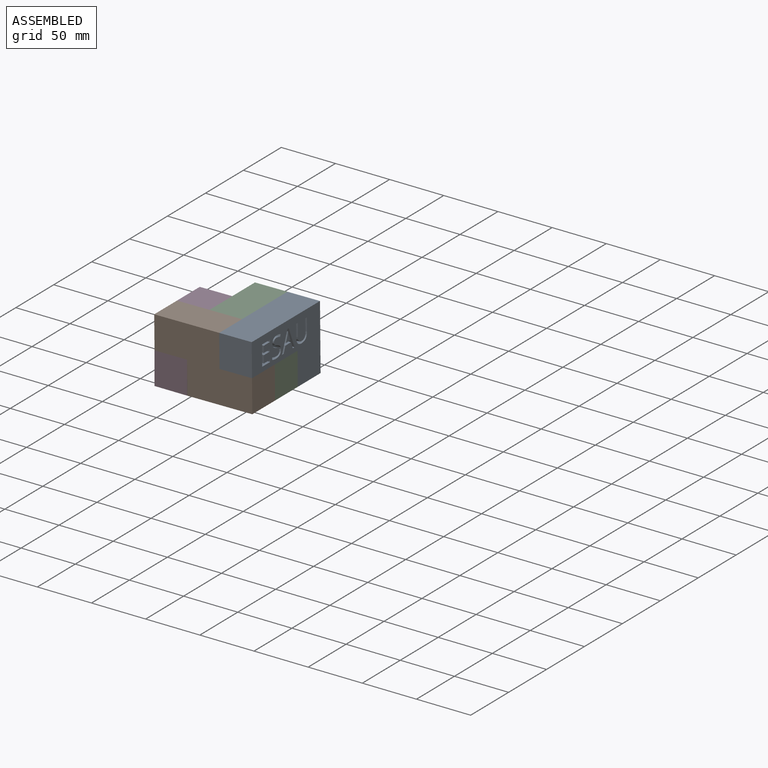
[diagram: assembled view]
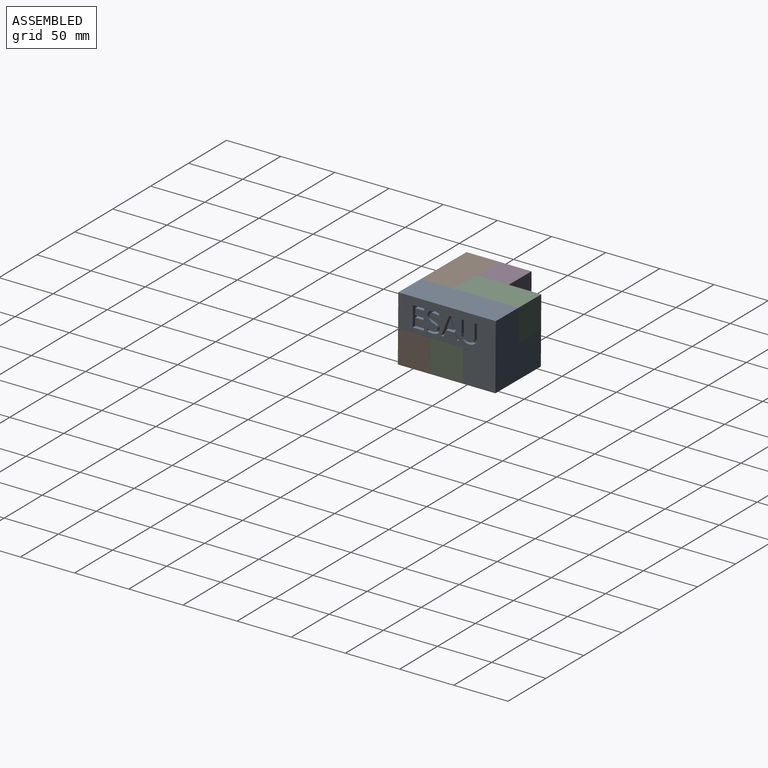
[diagram: assembled view, second angle]
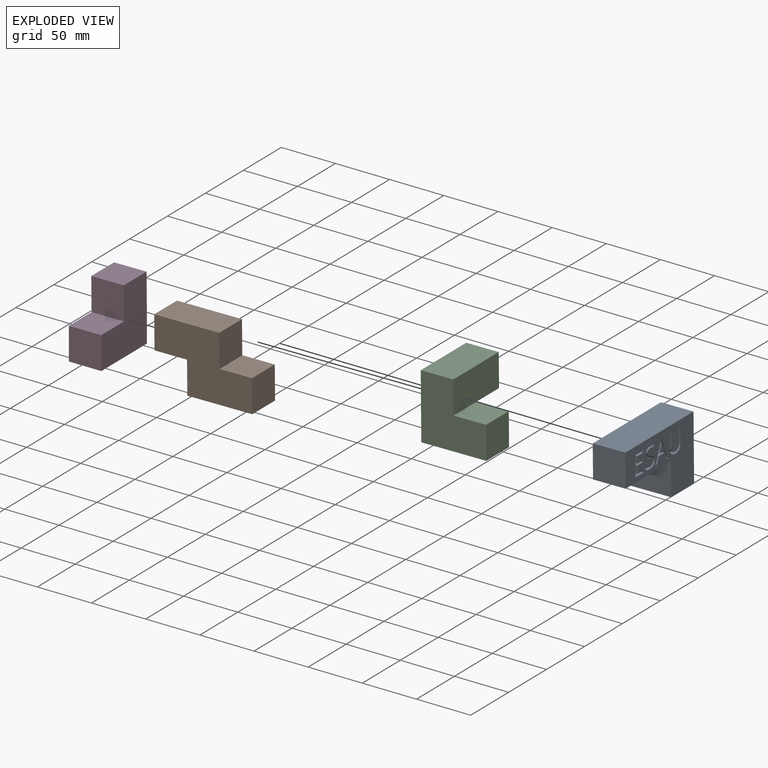
[diagram: exploded view]
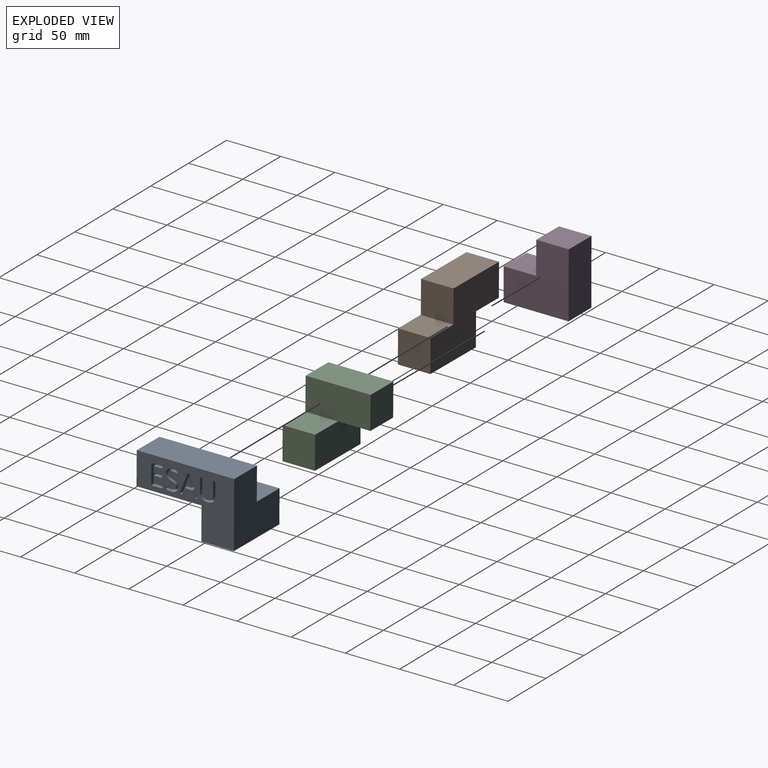
[diagram: exploded view, second angle]
ASSEMBLY  parts=4 mates=3
PART A: 79 faces, bbox 60x90x60 mm
  f0: plane 90x60mm, normal (-1,0,0), area 3231.9mm2, adj f1,f2,f4,f5,f6,f7,f10,f11
  f1: plane 60x30mm, normal (0,0,-1), area 1800mm2, adj f0,f3,f5,f6
  f2: plane 90x30mm, normal (0,0,1), area 2700mm2, adj f0,f3,f4,f5
  f3: plane 90x30mm, normal (1,0,0), area 2700mm2, adj f1,f2,f4,f5,f8
  f4: plane 60x60mm, normal (0,-1,0), area 2700mm2, adj f0,f2,f3,f7,f8,f9
  f5: plane 30x30mm, normal (0,1,0), area 900mm2, adj f0,f1,f2,f3
  f6: plane 60x30mm, normal (0,1,0), area 1800mm2, adj f0,f1,f7,f8,f9
  f7: plane 60x30mm, normal (0,0,-1), area 1800mm2, adj f0,f4,f6,f9
  f8: plane 30x30mm, normal (0,0,1), area 900mm2, adj f3,f4,f6,f9
  f9: plane 30x30mm, normal (1,0,0), area 900mm2, adj f4,f6,f7,f8
  f10: extruded ~5x3.82mm, area 21.9mm2, adj f0,f11,f34,f35
  f11: extruded ~5x3.09mm, area 16.8mm2, adj f0,f10,f12,f35
  f12: extruded ~5x4.01mm, area 23.1mm2, adj f0,f11,f13,f35
  f13: extruded ~5x2.58mm, area 14.1mm2, adj f0,f12,f14,f35
  f14: extruded ~5x1.2mm, area 8.3mm2, adj f0,f13,f15,f35
  f15: extruded ~5x1.58mm, area 8.2mm2, adj f0,f14,f16,f35
  f16: extruded ~5x2.04mm, area 11.7mm2, adj f0,f15,f17,f35
  f17: extruded ~5x2.67mm, area 14.1mm2, adj f0,f16,f18,f35
  f18: extruded ~5x4.46mm, area 23mm2, adj f0,f17,f19,f35
  f19: plane 5x1.87mm, normal (0,0.94,0.34), area 10mm2, adj f0,f18,f20,f35
  f20: extruded ~5.08x5mm, area 26.1mm2, adj f0,f19,f21,f35
  f21: extruded ~5x4.26mm, area 22.7mm2, adj f0,f20,f22,f35
  f22: extruded ~5x3.41mm, area 19.6mm2, adj f0,f21,f23,f35
  f23: extruded ~5x3.31mm, area 17.8mm2, adj f0,f22,f24,f35
  f24: extruded ~5x3.69mm, area 21.7mm2, adj f0,f23,f25,f35
  f25: extruded ~5x2.76mm, area 15mm2, adj f0,f24,f26,f35
  f26: extruded ~5x1.29mm, area 8.7mm2, adj f0,f25,f27,f35
  f27: extruded ~5x1.58mm, area 8.2mm2, adj f0,f26,f28,f35
  f28: extruded ~5x2.28mm, area 13.1mm2, adj f0,f27,f29,f35
  f29: extruded ~5x3.24mm, area 17mm2, adj f0,f28,f30,f35
  f30: extruded ~5x2.66mm, area 13.4mm2, adj f0,f29,f31,f35
  f31: extruded ~5x2.49mm, area 13mm2, adj f0,f30,f32,f35
  f32: plane 5x2.08mm, normal (0,-1,0), area 10.4mm2, adj f0,f31,f33,f35
  f33: extruded ~5.07x5mm, area 25.9mm2, adj f0,f32,f34,f35
  f34: extruded ~5x4.82mm, area 25.5mm2, adj f0,f10,f33,f35
  f35: plane 19.05x11.66mm, normal (-1,0,0), area 79.5mm2, adj f10,f11,f12,f13,f14,f15,f16,f17
  f36: plane 11.99x5mm, normal (0,1,0), area 59.9mm2, adj f0,f37,f49,f50
  f37: plane 5x2.15mm, normal (0,0,-1), area 10.8mm2, adj f0,f36,f38,f50
  f38: plane 12.07x5mm, normal (0,-1,0), area 60.3mm2, adj f0,f37,f39,f50
  f39: extruded ~5x3.58mm, area 19.5mm2, adj f0,f38,f40,f50
  f40: extruded ~5x3.61mm, area 19.6mm2, adj f0,f39,f41,f50
  f41: extruded ~5x3.73mm, area 20.1mm2, adj f0,f40,f42,f50
  f42: extruded ~5x3.56mm, area 19.4mm2, adj f0,f41,f43,f50
  f43: plane 12.09x5mm, normal (0,1,0), area 60.4mm2, adj f0,f42,f44,f50
  f44: plane 5x2.16mm, normal (0,0,-1), area 10.8mm2, adj f0,f43,f45,f50
  f45: plane 11.94x5mm, normal (0,-1,0), area 59.7mm2, adj f0,f44,f46,f50
  f46: extruded ~5.02x5mm, area 27.4mm2, adj f0,f45,f47,f50
  f47: extruded ~5.18x5mm, area 28.2mm2, adj f0,f46,f48,f50
  f48: extruded ~5.26x5mm, area 28.5mm2, adj f0,f47,f49,f50
  f49: extruded ~5x4.98mm, area 27.5mm2, adj f0,f36,f48,f50
  f50: plane 18.79x14.18mm, normal (-1,0,0), area 90.3mm2, adj f36,f37,f38,f39,f40,f41,f42,f43
  f51: plane 5.74x5mm, normal (0,-0.94,0.35), area 30.7mm2, adj f52,f63,f64,f78
  f52: plane 5.99x5mm, normal (0,0,-1), area 30mm2, adj f51,f53,f64,f78
  f53: plane 5.74x5mm, normal (0,0.94,0.35), area 30.7mm2, adj f52,f54,f64,f78
  f54: extruded ~5x2.67mm, area 14mm2, adj f53,f63,f64,f78
  f55: plane 5.89x5mm, normal (0,-0.93,0.36), area 31.6mm2, adj f0,f56,f62,f64
  f56: plane 5x2.23mm, normal (0,0,1), area 11.2mm2, adj f0,f55,f57,f64
  f57: plane 18.61x7.29mm, normal (0,0.93,-0.36), area 99.9mm2, adj f0,f56,f58,f64
  f58: plane 5x1.81mm, normal (0,0,-1), area 9.1mm2, adj f0,f57,f59,f64
  f59: plane 18.61x7.32mm, normal (0,-0.93,-0.37), area 100mm2, adj f0,f58,f60,f64
  f60: plane 5x2.18mm, normal (0,0,1), area 10.9mm2, adj f0,f59,f61,f64
  f61: plane 5.89x5mm, normal (0,0.93,0.36), area 31.6mm2, adj f0,f60,f62,f64
  f62: plane 7.43x5mm, normal (0,0,1), area 37.1mm2, adj f0,f55,f61,f64
  f63: extruded ~5x2.67mm, area 14mm2, adj f51,f54,f64,f78
  f64: plane 18.61x16.43mm, normal (-1,0,0), area 88.3mm2, adj f51,f52,f53,f54,f55,f56,f57,f58
  f65: plane 10.33x5mm, normal (0,0,1), area 51.6mm2, adj f0,f66,f76,f77
  f66: plane 5x1.93mm, normal (0,1,0), area 9.6mm2, adj f0,f65,f67,f77
  f67: plane 8.18x5mm, normal (0,0,-1), area 40.9mm2, adj f0,f66,f68,f77
  f68: plane 6.82x5mm, normal (0,1,0), area 34.1mm2, adj f0,f67,f69,f77
  f69: plane 7.68x5mm, normal (0,0,1), area 38.4mm2, adj f0,f68,f70,f77
  f70: plane 5x1.9mm, normal (0,1,0), area 9.5mm2, adj f0,f69,f71,f77
  f71: plane 7.68x5mm, normal (0,0,-1), area 38.4mm2, adj f0,f70,f72,f77
  f72: plane 5.97x5mm, normal (0,1,0), area 29.8mm2, adj f0,f71,f73,f77
  f73: plane 8.18x5mm, normal (0,0,1), area 40.9mm2, adj f0,f72,f74,f77
  f74: plane 5x1.91mm, normal (0,1,0), area 9.6mm2, adj f0,f73,f75,f77
  f75: plane 10.33x5mm, normal (0,0,-1), area 51.6mm2, adj f0,f74,f76,f77
  f76: plane 18.53x5mm, normal (0,-1,0), area 92.6mm2, adj f0,f65,f75,f77
  f77: plane 18.53x10.33mm, normal (-1,0,0), area 85.9mm2, adj f65,f66,f67,f68,f69,f70,f71,f72
  f78: plane 8.42x5.99mm, normal (-1,0,0), area 24.1mm2, adj f51,f52,f53,f54,f63
PART B: 10 faces, bbox 30x90x60 mm
  f0: plane 30x30mm, normal (0,1,0), area 900mm2, adj f2,f3,f4,f8
  f1: plane 30x30mm, normal (0,0,-1), area 900mm2, adj f3,f4,f5,f6
  f2: plane 60x30mm, normal (0,0,1), area 1800mm2, adj f0,f3,f4,f5
  f3: plane 90x60mm, normal (-1,0,0), area 3600mm2, adj f0,f1,f2,f5,f6,f7,f8,f9
  f4: plane 90x60mm, normal (1,0,0), area 3600mm2, adj f0,f1,f2,f5,f6,f7,f8,f9
  f5: plane 30x30mm, normal (0,-1,0), area 900mm2, adj f1,f2,f3,f4
  f6: plane 30x30mm, normal (0,-1,0), area 900mm2, adj f1,f3,f4,f7
  f7: plane 60x30mm, normal (0,0,-1), area 1800mm2, adj f3,f4,f6,f9
  f8: plane 30x30mm, normal (0,0,1), area 900mm2, adj f0,f3,f4,f9
  f9: plane 30x30mm, normal (0,1,0), area 900mm2, adj f3,f4,f7,f8
PART C: 10 faces, bbox 60x60x60 mm
  f0: plane 30x30mm, normal (0,0,-1), area 900mm2, adj f2,f3,f5,f6
  f1: plane 60x30mm, normal (0,0,1), area 1800mm2, adj f2,f3,f4,f5
  f2: plane 60x60mm, normal (-1,0,0), area 2700mm2, adj f0,f1,f4,f5,f6,f7
  f3: plane 60x30mm, normal (1,0,0), area 1800mm2, adj f0,f1,f4,f5,f8
  f4: plane 60x60mm, normal (0,-1,0), area 2700mm2, adj f1,f2,f3,f7,f8,f9
  f5: plane 30x30mm, normal (0,1,0), area 900mm2, adj f0,f1,f2,f3
  f6: plane 60x30mm, normal (0,1,0), area 1800mm2, adj f0,f2,f7,f8,f9
  f7: plane 60x30mm, normal (0,0,-1), area 1800mm2, adj f2,f4,f6,f9
  f8: plane 30x30mm, normal (0,0,1), area 900mm2, adj f3,f4,f6,f9
  f9: plane 30x30mm, normal (1,0,0), area 900mm2, adj f4,f6,f7,f8
PART D: 10 faces, bbox 30.3x60x60 mm
  f0: plane 30x30mm, normal (-0.01,0,1), area 900mm2, adj f1,f3,f4,f7
  f1: plane 60x29.72mm, normal (-1,0,0), area 1783.4mm2, adj f0,f2,f4,f5,f6
  f2: plane 60x30mm, normal (0,0,-1), area 1799.9mm2, adj f1,f3,f4,f5
  f3: plane 60x30mm, normal (1,0,0), area 1800mm2, adj f0,f2,f4,f5,f8
  f4: plane 30x30mm, normal (0,-1,0), area 895.8mm2, adj f0,f1,f2,f3
  f5: plane 60x30.28mm, normal (0,1,0), area 1795.8mm2, adj f1,f2,f3,f6,f8,f9
  f6: plane 30x30mm, normal (-1,0,-0.01), area 900mm2, adj f1,f5,f7,f9
  f7: plane 30.28x30.28mm, normal (0,-1,0), area 900mm2, adj f0,f6,f8,f9
  f8: plane 30x30mm, normal (1,0,0.01), area 900mm2, adj f3,f5,f7,f9
  f9: plane 30x30mm, normal (-0.01,0,1), area 900mm2, adj f5,f6,f7,f8
PLACE A rot(axis=(0,0,1),180deg) t=(12.52,-59.62,57.42)mm
PLACE B rot(axis=(0,0,-1),90deg) t=(29.84,-61.77,53.16)mm
PLACE C rot(axis=(0,-1,0),0.5deg) t=(49.93,30.38,65.75)mm
PLACE D rot(axis=(-0.59,0.78,-0.2),0deg) t=(16.41,0.38,24.95)mm
MATE fastened C.f4 <-> B.f3  axis (0,-1,0) through (59.84,-29.62,53.44)mm
MATE fastened B.f5 <-> D.f6  axis (-1,0,-0.01) through (-30.43,-29.62,82.6)mm
MATE fastened A.f3 <-> C.f3  axis (-1,0,-0.01) through (29.57,30.38,83.16)mm
